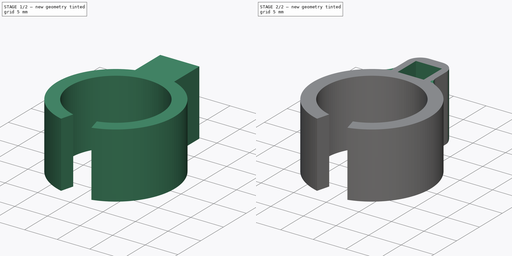
[diagram: build sequence overview — one tinted view per stage of 2, left to right]
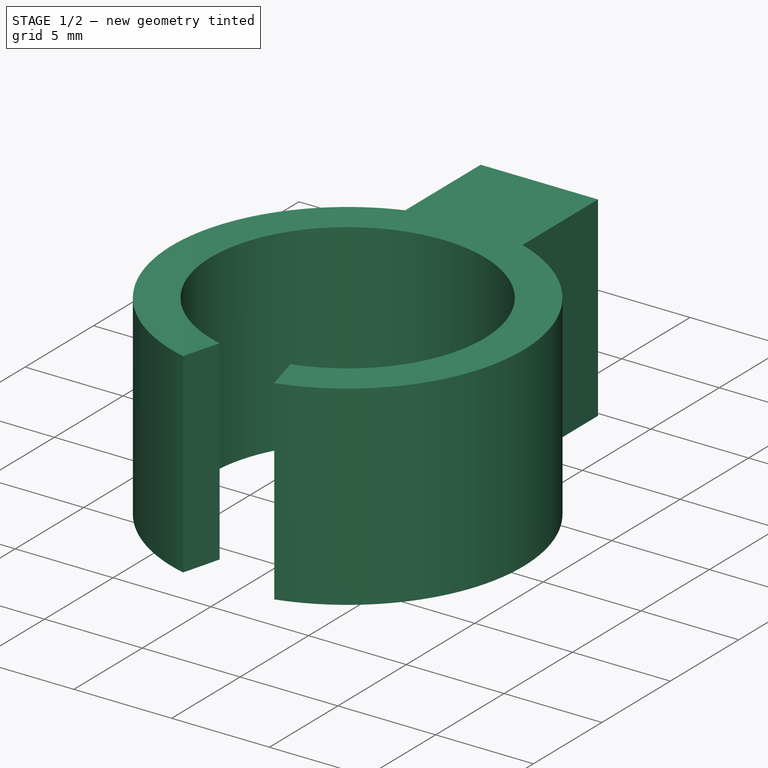
[diagram: stage 1 of 2 — iso view after this stage's code; geometry added in this stage tinted green]
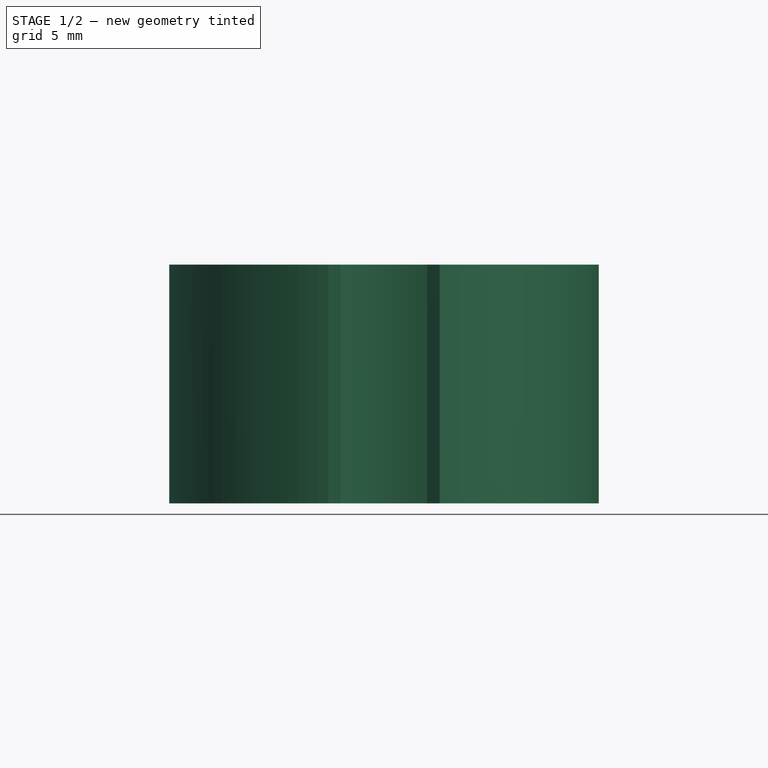
[diagram: stage 1 of 2 — front view after this stage's code; geometry added in this stage tinted green]
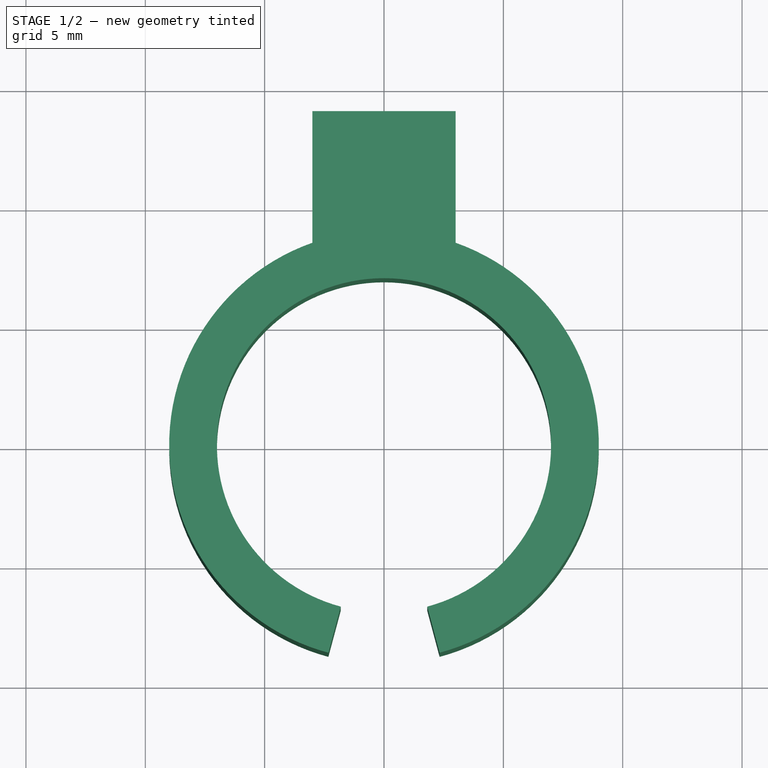
[diagram: stage 1 of 2 — top view after this stage's code; geometry added in this stage tinted green]
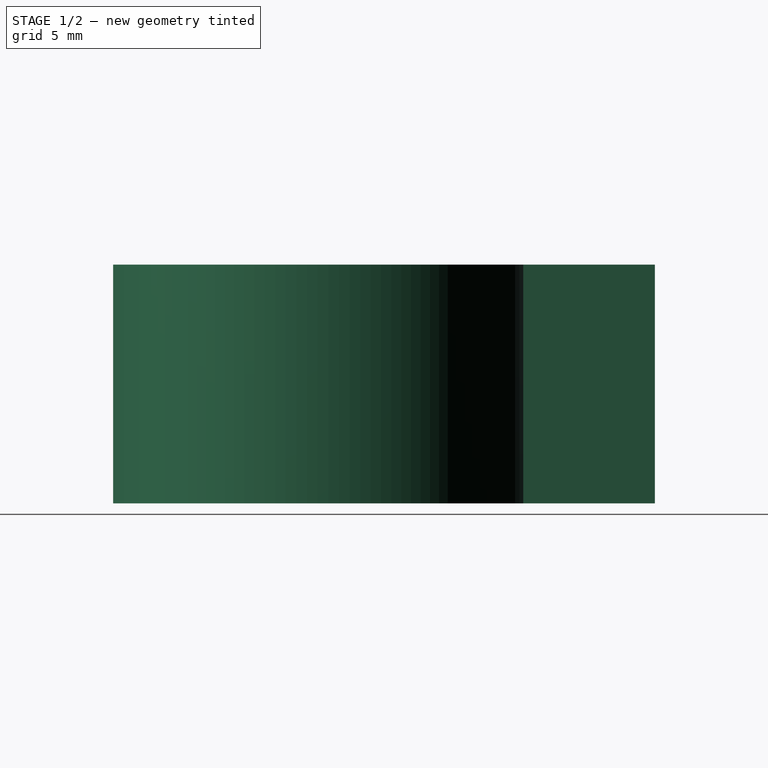
[diagram: stage 1 of 2 — right view after this stage's code; geometry added in this stage tinted green]
FCSTD DOCUMENT  (FreeCAD 0.19R24291 (Git))
Label: Ring
License: All rights reserved
LicenseURL: http://en.wikipedia.org/wiki/All_rights_reserved
objects: Sketcher::SketchObject×3, PartDesign::Pad×2, PartDesign::Fillet×1, PartDesign::Pocket×1, PartDesign::Body×1
note: 12 computed .brp shape members not serialized (recipe doc carries the construction recipe); baked Part::Feature solids carry a one-line shape summary decoded from their .brp

FEATURE [Sketcher::SketchObject] Sketch
  FullyConstrained = true
  MapMode = 5
  Support = -> [XY_Plane]
  sketch-geometry (7):
    g0: ArcOfCircle CenterX=2e-16 CenterY=0 CenterZ=0 NormalX=0 NormalY=0 NormalZ=1 AngleXU=0 Radius=9 StartAngle=4.97419 EndAngle=10.7338
    g1: ArcOfCircle CenterX=2e-16 CenterY=0 CenterZ=0 NormalX=0 NormalY=0 NormalZ=1 AngleXU=0 Radius=7 StartAngle=4.97419 EndAngle=10.7338
    g2: LineSegment StartX=-2.32937 StartY=-8.69333 StartZ=0 EndX=-1.81173 EndY=-6.76148 EndZ=0
    g3: LineSegment StartX=1.81173 StartY=-6.76148 StartZ=0 EndX=2.32937 EndY=-8.69333 EndZ=0
    g4: LineSegment StartX=-1.81173 StartY=-6.76148 StartZ=0 EndX=2e-16 EndY=0 EndZ=0
    g5: LineSegment StartX=2e-16 StartY=0 StartZ=0 EndX=1.81173 EndY=-6.76148 EndZ=0
    g6: LineSegment StartX=-1.81173 StartY=-6.76148 StartZ=0 EndX=1.81173 EndY=-6.76148 EndZ=0
  constraints (18):
    c: Coincident(g0,g-1)
    c: Coincident(g1,g0)
    c: Coincident(g2,g0)
    c: Coincident(g2,g1)
    c: Coincident(g3,g1)
    c: Coincident(g3,g0)
    c: Coincident(g4,g1)
    c: Coincident(g4,g0)
    c: Coincident(g5,g0)
    c: Coincident(g5,g1)
    c: Parallel(g2,g4)
    c: Parallel(g3,g5)
    c: Coincident(g6,g1)
    c: Coincident(g6,g1)
    c: Horizontal(g6)
    c: Diameter(g1) = 14
    c: Diameter(g0) = 18
    c: Angle(g4,g5) = 0.523599
FEATURE [PartDesign::Pad] Pad  label="Haltering"
  Direction = (1,1,1)
  Length = 10
  Length2 = 100
  Profile = -> Sketch
  Type = 0
FEATURE [Sketcher::SketchObject] Sketch001
  ExternalGeometry = -> [Pad]
  FullyConstrained = true
  MapMode = 5
  Placement = pos=(0,0,10) rot=(0,0,1;0rad)
  Support = -> [Pad]
  sketch-geometry (5):
    g0: LineSegment StartX=-3 StartY=8.48528 StartZ=0 EndX=-3 EndY=14 EndZ=0
    g1: LineSegment StartX=-3 StartY=14 StartZ=0 EndX=3 EndY=14 EndZ=0
    g2: LineSegment StartX=3 StartY=14 StartZ=0 EndX=3 EndY=8.48528 EndZ=0
    g3: LineSegment StartX=-3 StartY=9 StartZ=0 EndX=3 EndY=9 EndZ=0
    g4: LineSegment StartX=-3 StartY=8.48528 StartZ=0 EndX=3 EndY=8.48528 EndZ=0
  constraints (17):
    c: PointOnObject(g0,g-3)
    c: Vertical(g0)
    c: Coincident(g1,g0)
    c: Horizontal(g1)
    c: Coincident(g2,g1)
    c: PointOnObject(g2,g-3)
    c: Vertical(g2)
    c: Equal(g2,g0)
    c: DistanceY(g-1,g0) = 14
    c: DistanceX(g1,g1) = 6
    c: Horizontal(g3)
    c: PointOnObject(g3,g0)
    c: PointOnObject(g3,g2)
    c: Tangent(g3,g-3)
    c: DistanceY(g3,g1) = 5
    c: Coincident(g4,g0)
    c: Coincident(g4,g2)
FEATURE [PartDesign::Pad] Pad001
  BaseFeature = -> Pad
  Direction = (1,1,1)
  Length = 10
  Length2 = 100
  Profile = -> Sketch001
  Reversed = true
  Type = 0
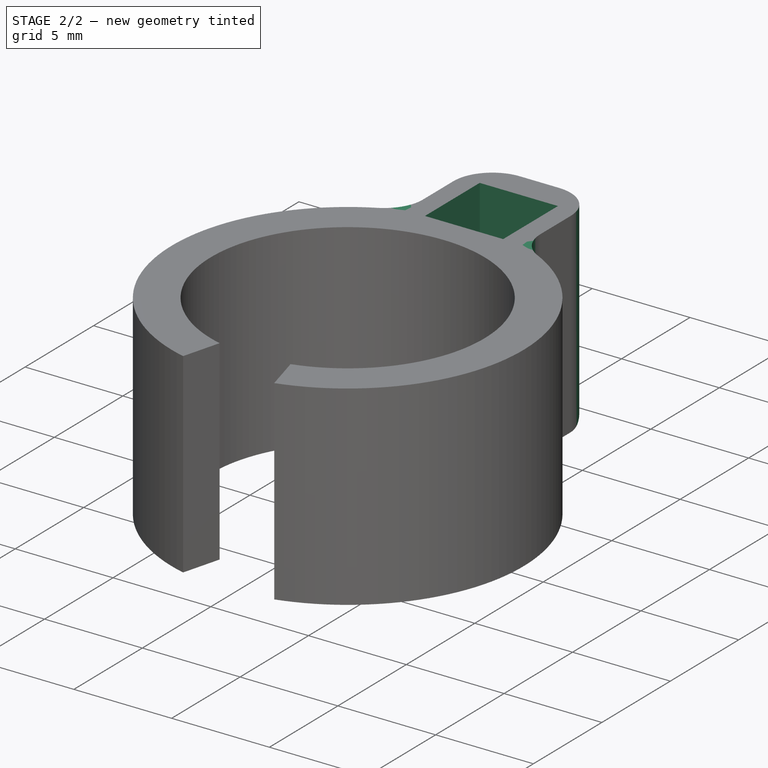
[diagram: stage 2 of 2 — iso view after this stage's code; geometry added in this stage tinted green]
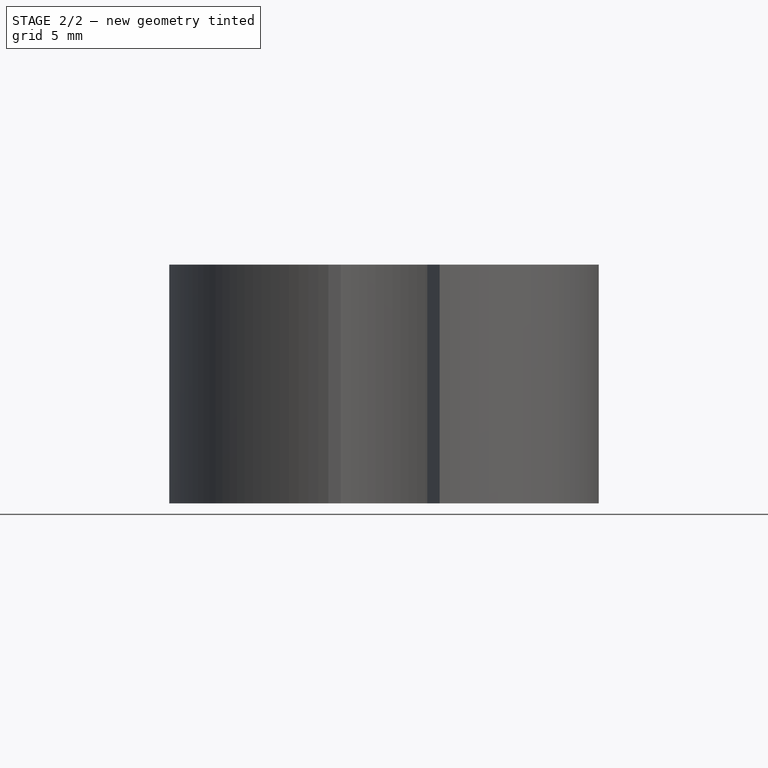
[diagram: stage 2 of 2 — front view after this stage's code; geometry added in this stage tinted green]
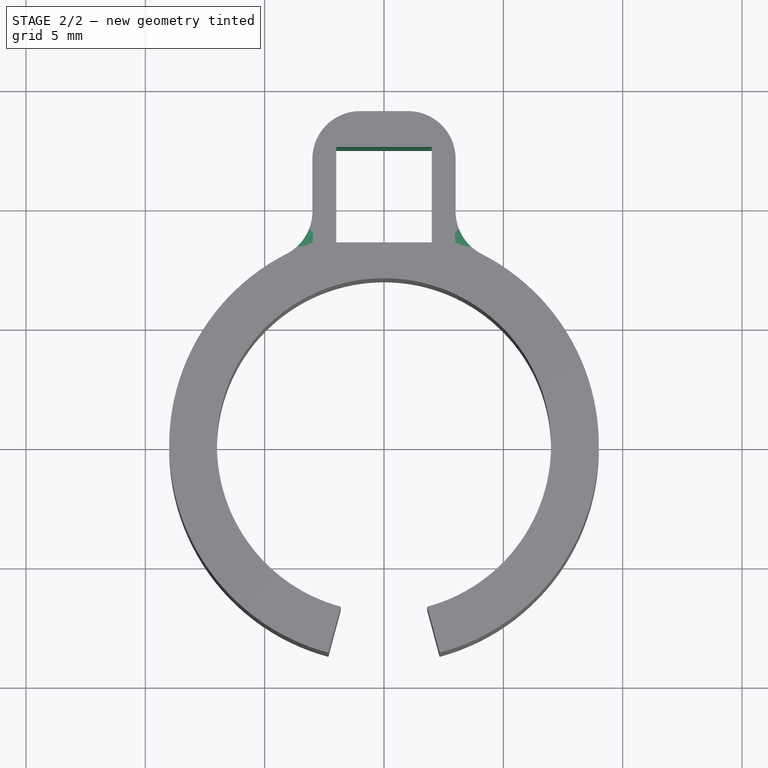
[diagram: stage 2 of 2 — top view after this stage's code; geometry added in this stage tinted green]
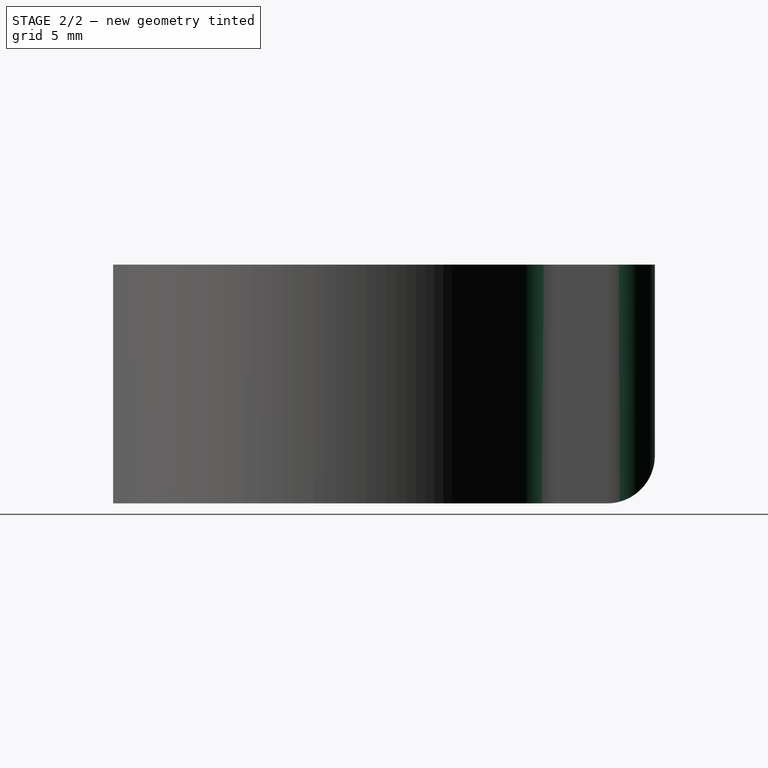
[diagram: stage 2 of 2 — right view after this stage's code; geometry added in this stage tinted green]
FEATURE [PartDesign::Fillet] Fillet
  Base = -> Pad001 [Edge24,Edge26,Edge18,Edge9,Edge21]
  BaseFeature = -> Pad001
  Radius = 2
  SupportTransform = false
FEATURE [Sketcher::SketchObject] Sketch002
  FullyConstrained = true
  MapMode = 5
  Placement = pos=(0,0,10) rot=(0,0,1;0rad)
  Support = -> [Fillet]
  sketch-geometry (4):
    g0: LineSegment StartX=-2 StartY=12.5 StartZ=0 EndX=2 EndY=12.5 EndZ=0
    g1: LineSegment StartX=2 StartY=12.5 StartZ=0 EndX=2 EndY=8.5 EndZ=0
    g2: LineSegment StartX=2 StartY=8.5 StartZ=0 EndX=-2 EndY=8.5 EndZ=0
    g3: LineSegment StartX=-2 StartY=8.5 StartZ=0 EndX=-2 EndY=12.5 EndZ=0
  constraints (11):
    c: Coincident(g0,g1)
    c: Coincident(g1,g2)
    c: Coincident(g2,g3)
    c: Coincident(g3,g0)
    c: Horizontal(g2)
    c: Vertical(g1)
    c: Vertical(g3)
    c: Equal(g1,g0)
    c: Symmetric(g0,g0,g-2)
    c: DistanceX(g0,g0) = 4
    c: DistanceY(g-1,g2) = 8.5
FEATURE [PartDesign::Pocket] Pocket
  BaseFeature = -> Fillet
  Length = 5
  Length2 = 100
  Profile = -> Sketch002
  Type = 1
FEATURE [PartDesign::Body] Body
  Group = -> [Sketch,Pad,Sketch001,Pad001,Fillet,Sketch002,Pocket]
  Origin = -> Origin
  Tip = -> Pocket
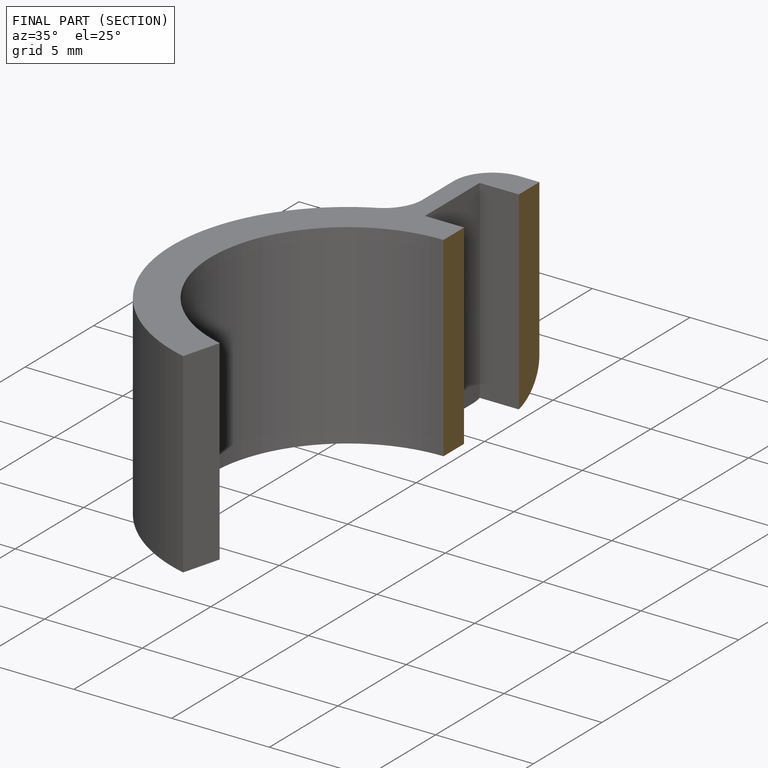
[diagram: finished part — half-section view (interior)]
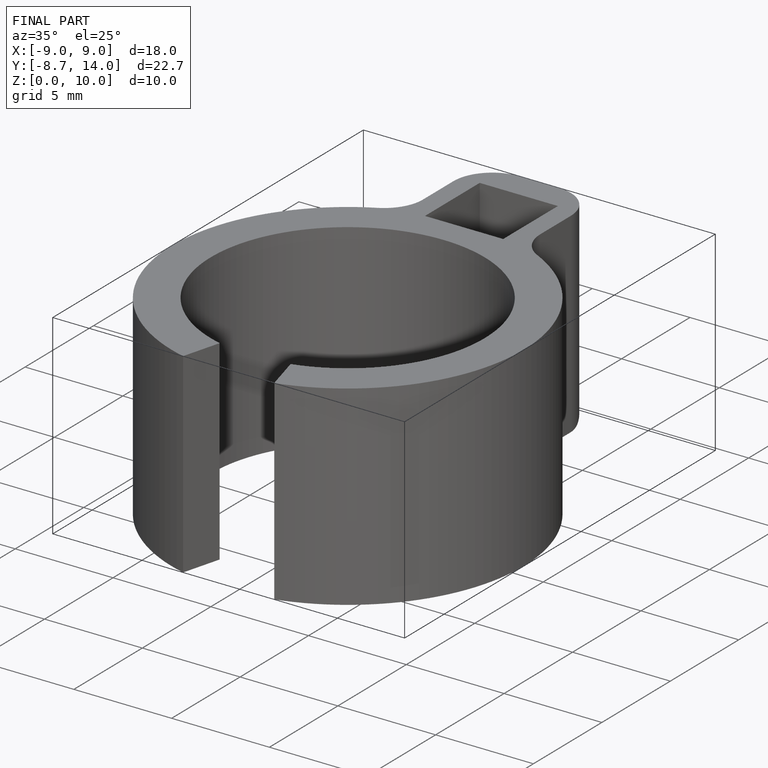
[diagram: finished part — iso view with bounding-box wireframe]
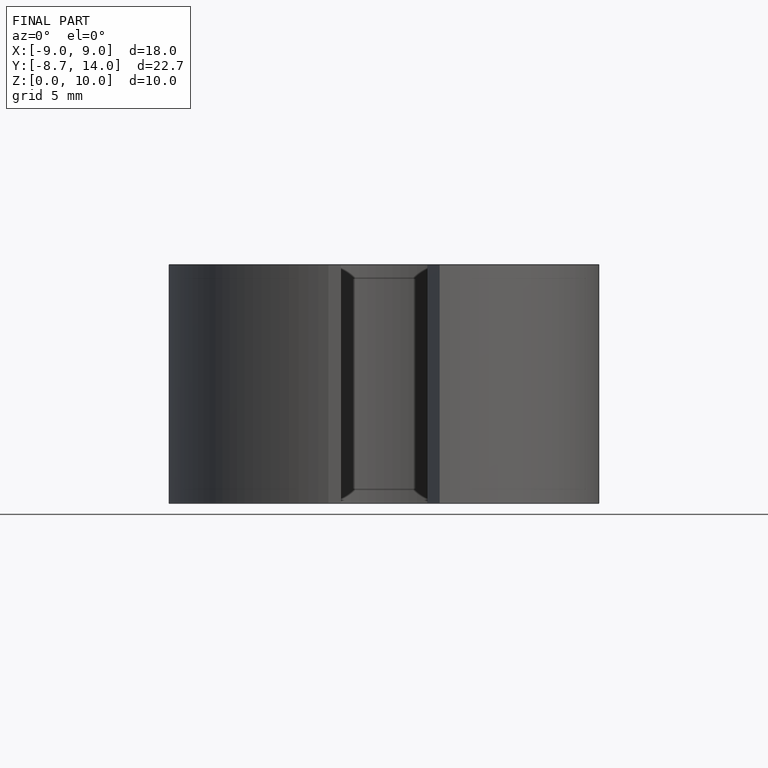
[diagram: finished part — front view with bounding-box wireframe]
